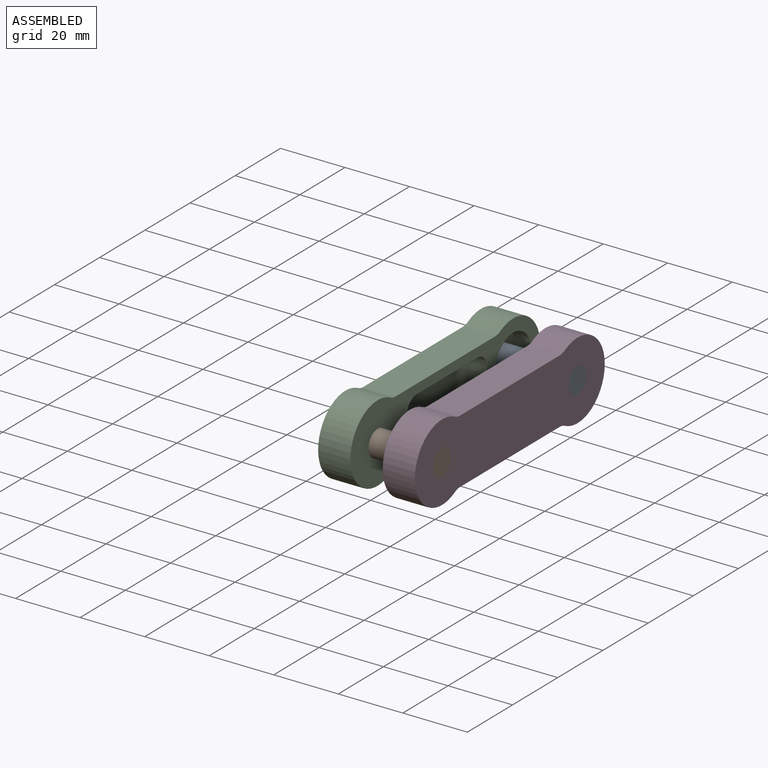
[diagram: assembled view]
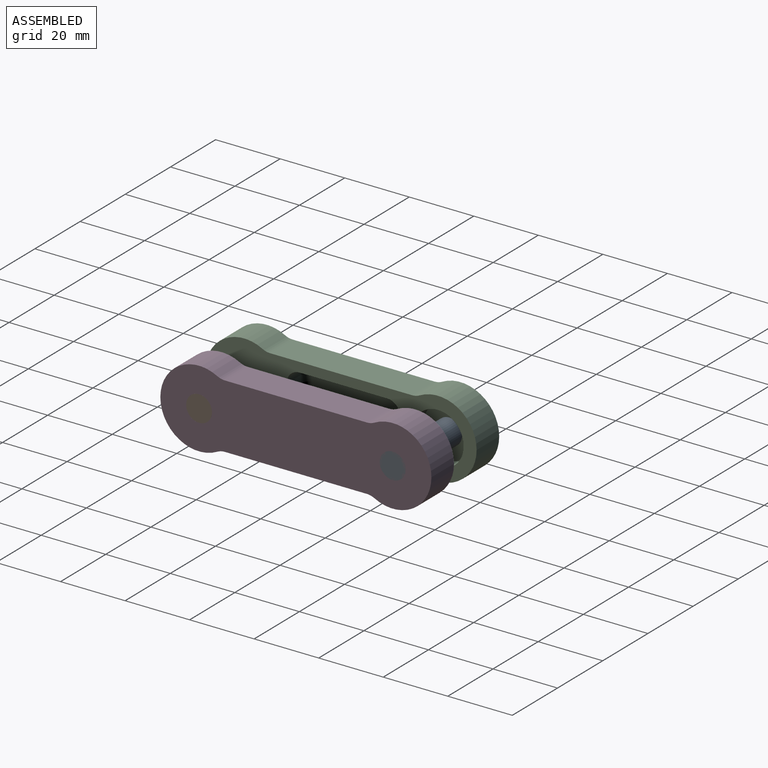
[diagram: assembled view, second angle]
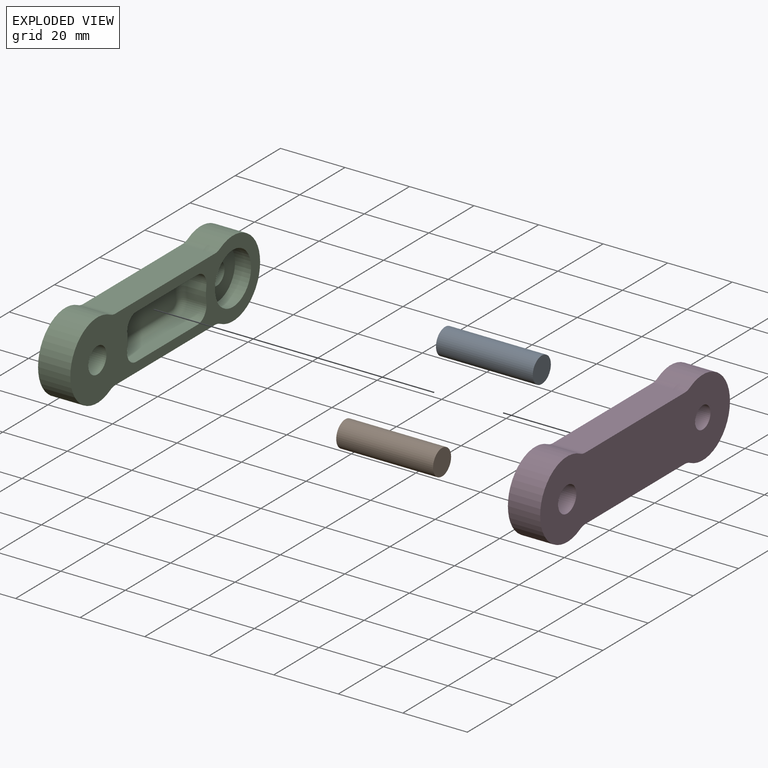
[diagram: exploded view]
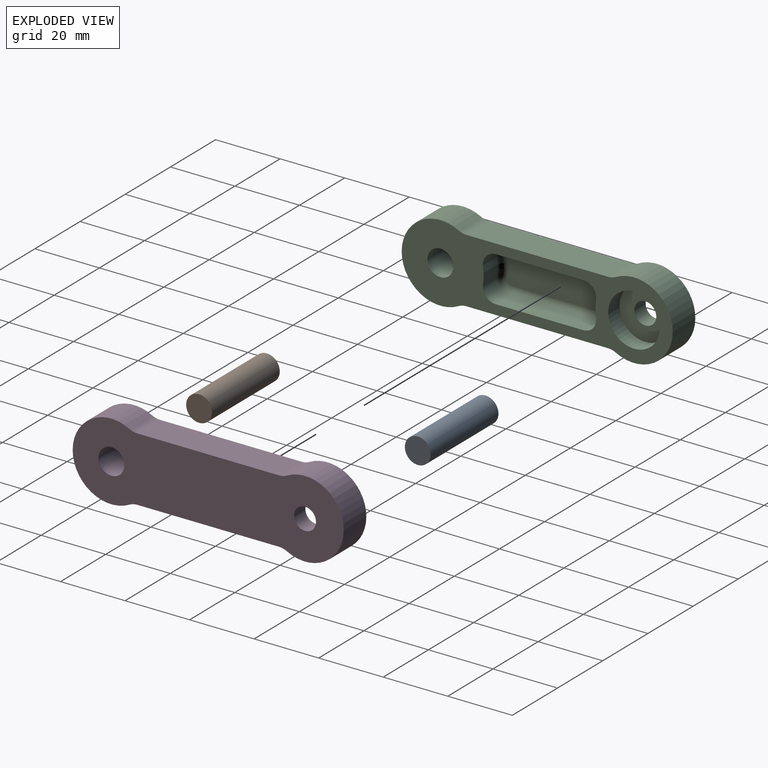
[diagram: exploded view, second angle]
ASSEMBLY  parts=4 mates=4
PART A: 3 faces, bbox 8x30x8 mm
  f0: cylinder r=4mm len=30mm, axis (0,1,0), area 754mm2, adj f1,f2
  f1: plane 8x8mm, normal (0,-1,0), area 50.3mm2, adj f0
  f2: plane 8x8mm, normal (0,1,0), area 50.3mm2, adj f0
PART B: same geometry as A
PART C: 31 faces, bbox 10x84x24 mm
  f0: cylinder r=4mm len=6mm, axis (-1,0,0), area 41.9mm2, adj f11,f12,f13,f30
  f1: cylinder r=4mm len=6mm, axis (-1,0,0), area 41.9mm2, adj f11,f13,f14,f26
  f2: cylinder r=4mm len=6mm, axis (-1,0,0), area 42.2mm2, adj f11,f14,f15,f23
  f3: cylinder r=4mm len=6mm, axis (-1,0,0), area 42.2mm2, adj f11,f12,f15,f27
  f4: cylinder r=8mm len=16mm, axis (1,0,0), area 251.3mm2, adj f11,f21
  f5: plane 44x10mm, normal (0,0,1), area 440mm2, adj f10,f11,f16,f19
  f6: cylinder r=12mm len=24mm, axis (1,0,0), area 494.6mm2, adj f10,f11,f16,f17
  f7: plane 44x10mm, normal (0,0,-1), area 440mm2, adj f10,f11,f17,f18
  f8: cylinder r=12mm len=24mm, axis (1,0,0), area 494.6mm2, adj f10,f11,f18,f19
  f9: cylinder r=4mm len=10mm, axis (1,0,0), area 251.3mm2, adj f10,f11
  f10: plane 84x24mm, normal (-1,0,0), area 1602.4mm2, adj f5,f6,f7,f8,f9,f16,f17,f18
  f11: plane 84x24mm, normal (1,0,0), area 961.5mm2, adj f0,f1,f2,f3,f4,f5,f6,f7
  f12: plane 27.13x6mm, normal (0,0,-1), area 162.8mm2, adj f0,f3,f11,f29
  f13: cylinder r=13.41mm len=6mm, axis (-1,0,0), area 27.9mm2, adj f0,f1,f11,f28
  f14: plane 27.13x6mm, normal (0,0,1), area 162.8mm2, adj f1,f2,f11,f24
  f15: cylinder r=12mm len=6mm, axis (-1,0,0), area 27.2mm2, adj f2,f3,f11,f25
  f16: cylinder r=5mm len=10mm, axis (1,0,0), area 24.5mm2, adj f5,f6,f10,f11
  f17: cylinder r=5mm len=10mm, axis (1,0,0), area 24.5mm2, adj f6,f7,f10,f11
  f18: cylinder r=5mm len=10mm, axis (1,0,0), area 24.5mm2, adj f7,f8,f10,f11
  f19: cylinder r=5mm len=10mm, axis (1,0,0), area 24.5mm2, adj f5,f8,f10,f11
  f20: cylinder r=3.4mm len=6.8mm, axis (1,0,0), area 106.8mm2, adj f10,f21
  f21: plane 16x16mm, normal (1,0,0), area 164.7mm2, adj f4,f20
  f22: plane 31.13x10mm, normal (1,0,0), area 305.8mm2, adj f23,f24,f25,f26,f27,f28,f29,f30
  f23: torus R=2mm, axis (-1,0,0), area 18.1mm2, adj f2,f22,f24,f25
  f24: cylinder r=2mm len=27.13mm, axis (0,-1,0), area 85.2mm2, adj f14,f22,f23,f26
  f25: torus R=14mm, axis (-1,0,0), area 15.1mm2, adj f15,f22,f23,f27
  f26: torus R=2mm, axis (-1,0,0), area 17.9mm2, adj f1,f22,f24,f28
  f27: torus R=2mm, axis (-1,0,0), area 18.1mm2, adj f3,f22,f25,f29
  f28: torus R=15.41mm, axis (-1,0,0), area 15.4mm2, adj f13,f22,f26,f30
  f29: cylinder r=2mm len=27.13mm, axis (0,1,0), area 85.2mm2, adj f12,f22,f27,f30
  f30: torus R=2mm, axis (-1,0,0), area 17.9mm2, adj f0,f22,f28,f29
PART D: 31 faces, bbox 10x84x24 mm
  f0: cylinder r=4mm len=6mm, axis (1,0,0), area 41.9mm2, adj f11,f12,f13,f30
  f1: cylinder r=4mm len=6mm, axis (1,0,0), area 41.9mm2, adj f11,f13,f14,f26
  f2: cylinder r=4mm len=6mm, axis (1,0,0), area 42.2mm2, adj f11,f14,f15,f23
  f3: cylinder r=4mm len=6mm, axis (1,0,0), area 42.2mm2, adj f11,f12,f15,f27
  f4: cylinder r=8mm len=16mm, axis (-1,0,0), area 251.3mm2, adj f11,f21
  f5: plane 44x10mm, normal (0,0,1), area 440mm2, adj f10,f11,f16,f19
  f6: cylinder r=12mm len=24mm, axis (-1,0,0), area 494.6mm2, adj f10,f11,f16,f17
  f7: plane 44x10mm, normal (0,0,-1), area 440mm2, adj f10,f11,f17,f18
  f8: cylinder r=12mm len=24mm, axis (-1,0,0), area 494.6mm2, adj f10,f11,f18,f19
  f9: cylinder r=4mm len=10mm, axis (-1,0,0), area 251.3mm2, adj f10,f11
  f10: plane 84x24mm, normal (1,0,0), area 1602.4mm2, adj f5,f6,f7,f8,f9,f16,f17,f18
  f11: plane 84x24mm, normal (-1,0,0), area 961.5mm2, adj f0,f1,f2,f3,f4,f5,f6,f7
  f12: plane 27.13x6mm, normal (0,0,-1), area 162.8mm2, adj f0,f3,f11,f29
  f13: cylinder r=13.41mm len=6mm, axis (1,0,0), area 27.9mm2, adj f0,f1,f11,f28
  f14: plane 27.13x6mm, normal (0,0,1), area 162.8mm2, adj f1,f2,f11,f24
  f15: cylinder r=12mm len=6mm, axis (1,0,0), area 27.2mm2, adj f2,f3,f11,f25
  f16: cylinder r=5mm len=10mm, axis (-1,0,0), area 24.5mm2, adj f5,f6,f10,f11
  f17: cylinder r=5mm len=10mm, axis (-1,0,0), area 24.5mm2, adj f6,f7,f10,f11
  f18: cylinder r=5mm len=10mm, axis (-1,0,0), area 24.5mm2, adj f7,f8,f10,f11
  f19: cylinder r=5mm len=10mm, axis (-1,0,0), area 24.5mm2, adj f5,f8,f10,f11
  f20: cylinder r=3.4mm len=6.8mm, axis (-1,0,0), area 106.8mm2, adj f10,f21
  f21: plane 16x16mm, normal (-1,0,0), area 164.7mm2, adj f4,f20
  f22: plane 31.13x10mm, normal (-1,0,0), area 305.8mm2, adj f23,f24,f25,f26,f27,f28,f29,f30
  f23: torus R=2mm, axis (1,0,0), area 18.1mm2, adj f2,f22,f24,f25
  f24: cylinder r=2mm len=27.13mm, axis (0,-1,0), area 85.2mm2, adj f14,f22,f23,f26
  f25: torus R=14mm, axis (1,0,0), area 15.1mm2, adj f15,f22,f23,f27
  f26: torus R=2mm, axis (1,0,0), area 17.9mm2, adj f1,f22,f24,f28
  f27: torus R=2mm, axis (1,0,0), area 18.1mm2, adj f3,f22,f25,f29
  f28: torus R=15.41mm, axis (1,0,0), area 15.4mm2, adj f13,f22,f26,f30
  f29: cylinder r=2mm len=27.13mm, axis (0,1,0), area 85.2mm2, adj f12,f22,f27,f30
  f30: torus R=2mm, axis (1,0,0), area 17.9mm2, adj f0,f22,f28,f29
PLACE A rot(axis=(-0.58,0.58,0.58),120deg) t=(-71.82,-14.35,-30.05)mm
PLACE B rot(axis=(-0.58,0.58,0.58),120deg) t=(-71.82,-74.35,-30.05)mm
PLACE C t=(-11.82,-14.35,-7.2)mm
PLACE D t=(-51.82,-14.35,-7.2)mm
MATE fastened B.f0 <-> D.f9  axis (1,0,0) through (-41.82,-74.35,-7.2)mm
MATE fastened C.f20 <-> A.f0  axis (-1,0,0) through (-71.82,-14.35,-7.2)mm
MATE fastened B.f0 <-> C.f9  axis (-1,0,0) through (-71.82,-74.35,-7.2)mm
MATE fastened A.f0 <-> D.f20  axis (1,0,0) through (-41.82,-14.35,-7.2)mm
